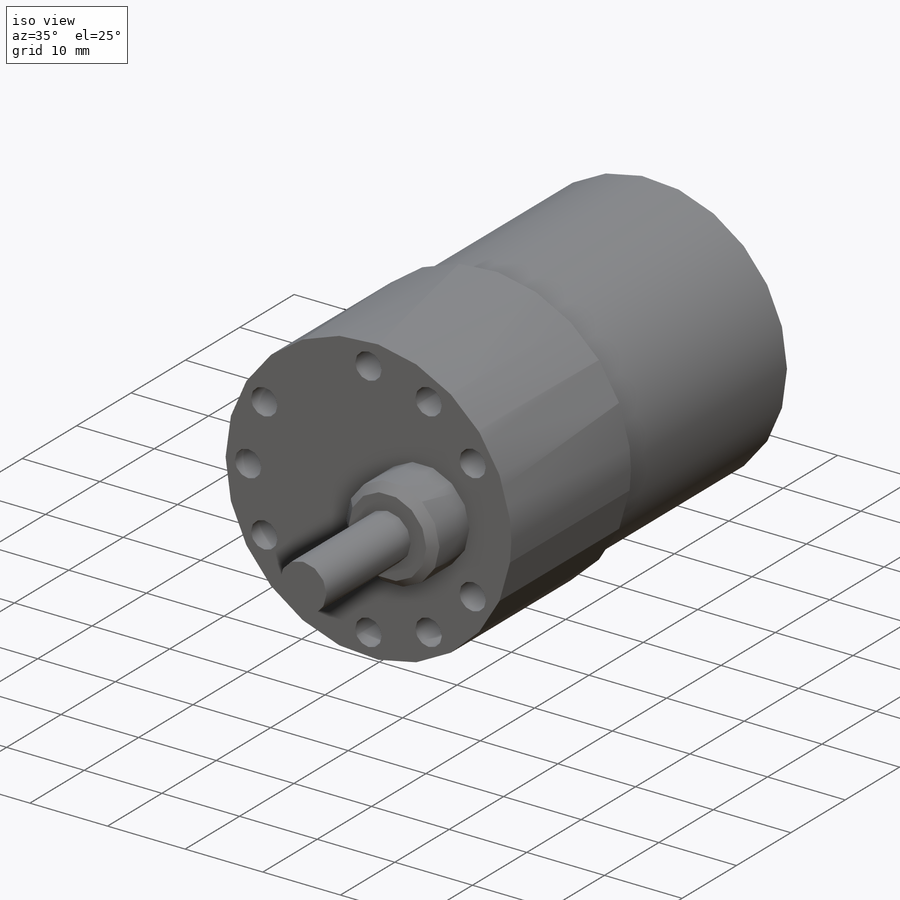
[diagram: iso view]
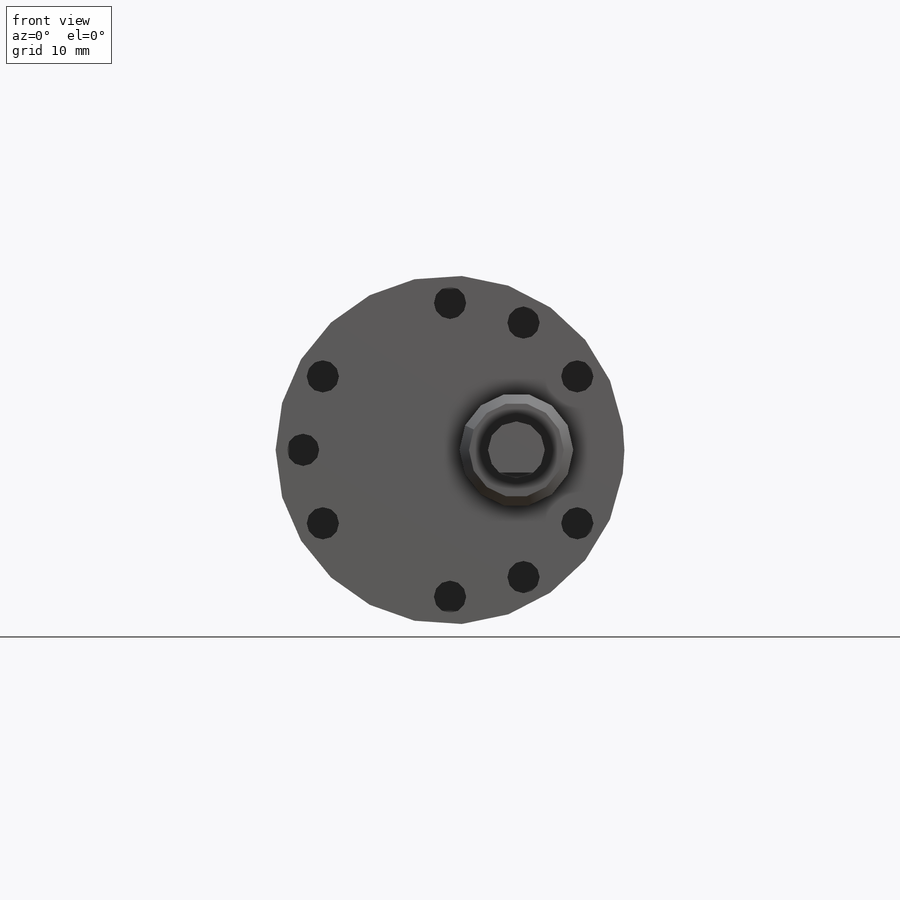
[diagram: front view]
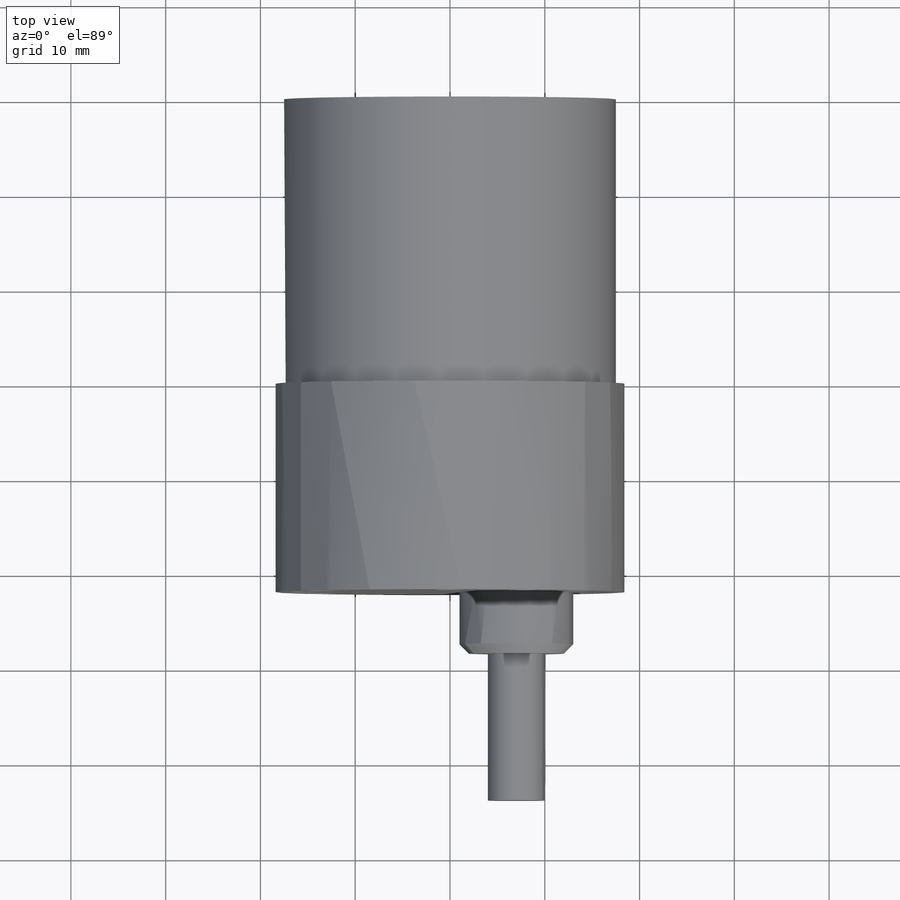
[diagram: top view]
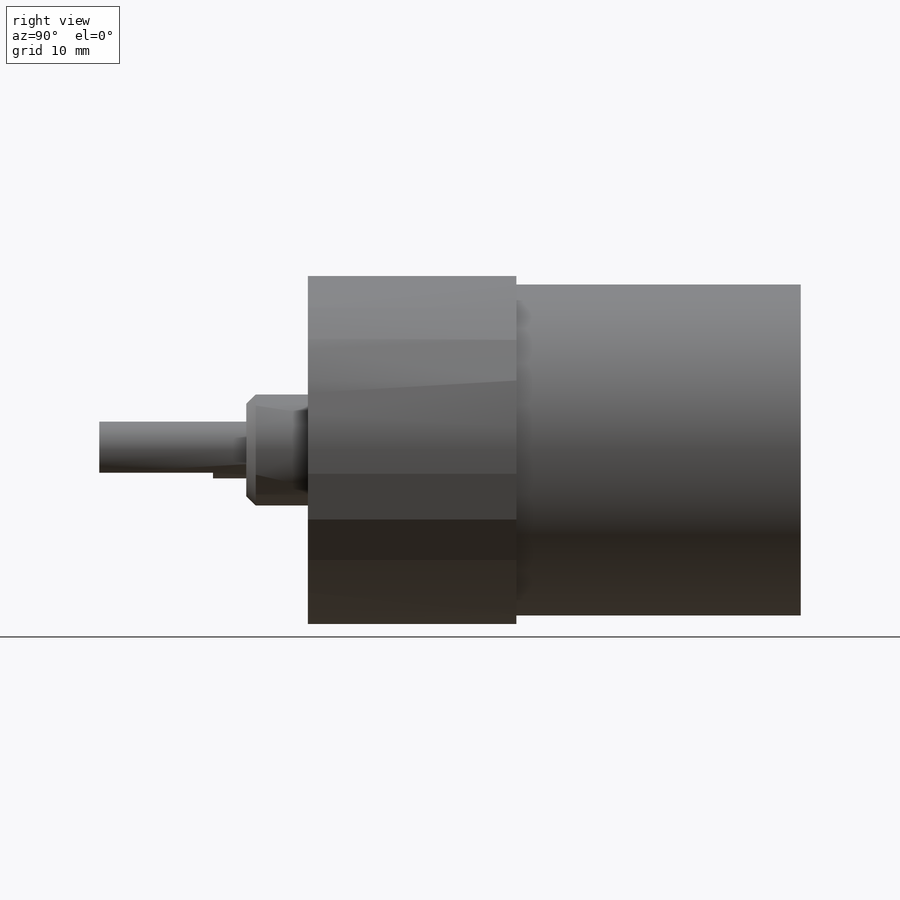
[diagram: right view]
SOLIDWORKS PART (.sldprt)
format: sldprt  version: not decoded by parser v0  size: 274,432 bytes
history: native  units: mm
features: sketch x6, extrude x5, material x1, chamfer x1, cut_extrude x1 (+13 scaffold rows collapsed)
feature tree (27):
  scaffold x13  (default folders/planes/origin — collapsed)
  material  "Material <not specified>"
  sketch  "Sketch1"  dims[D1=36.8mm]
  extrude  "Boss-Extrude1"  Depth=22mm
  sketch  "Sketch2"  dims[D1=35.0mm]
  extrude  "Boss-Extrude2"  Depth=30mm
  sketch  "Sketch3"  dims[D1=7.0mm D2=7.0mm]
  extrude  "Boss-Extrude4"  Depth=6.5mm
  chamfer  "Chamfer1"  Distance=1mm Angle=45deg
  sketch  "Sketch4"  dims[D1=6.0mm]
  extrude  "Boss-Extrude5"  Depth=3.5mm
  sketch  "Sketch5"  dims[D2=6.0mm D1=2.4mm]
  extrude  "Boss-Extrude6"  Depth=12mm
  sketch  "Sketch6"  dims[D1=31.0mm D2=3.4mm D4=3.4mm D3=6.0 D5=3.0]
  cut_extrude  "Cut-Extrude1"  Depth=12mm
decode coverage: 13 of 13 modeling features carry decoded parameters
note: suppression state not decoded; provenance and decode notes live in map.json
